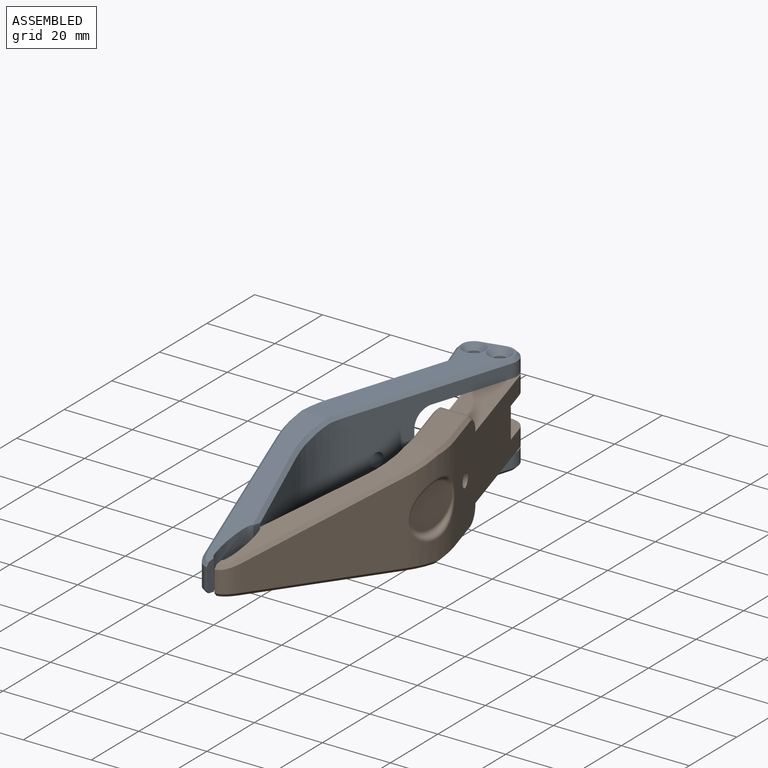
[diagram: assembled view]
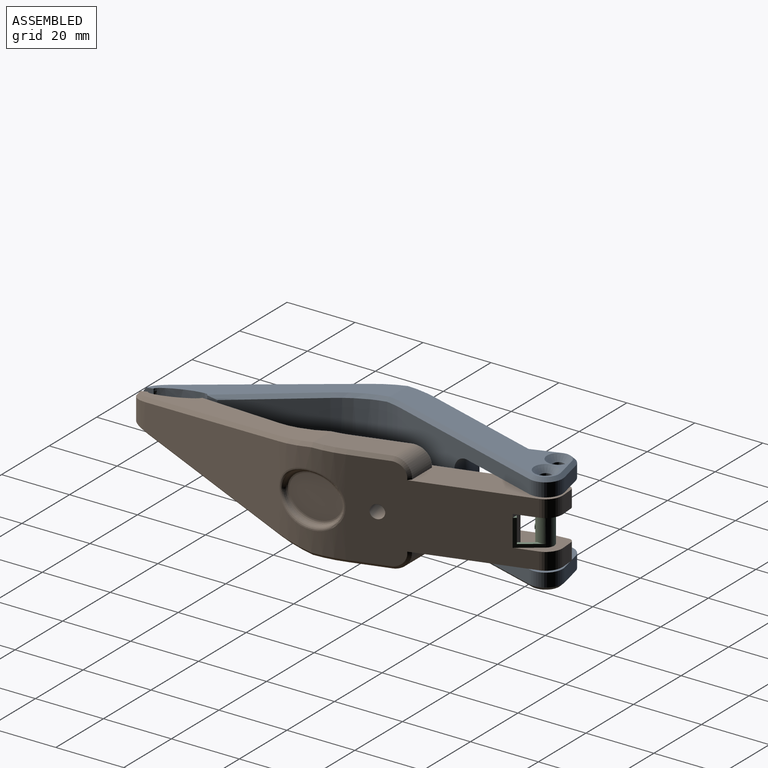
[diagram: assembled view, second angle]
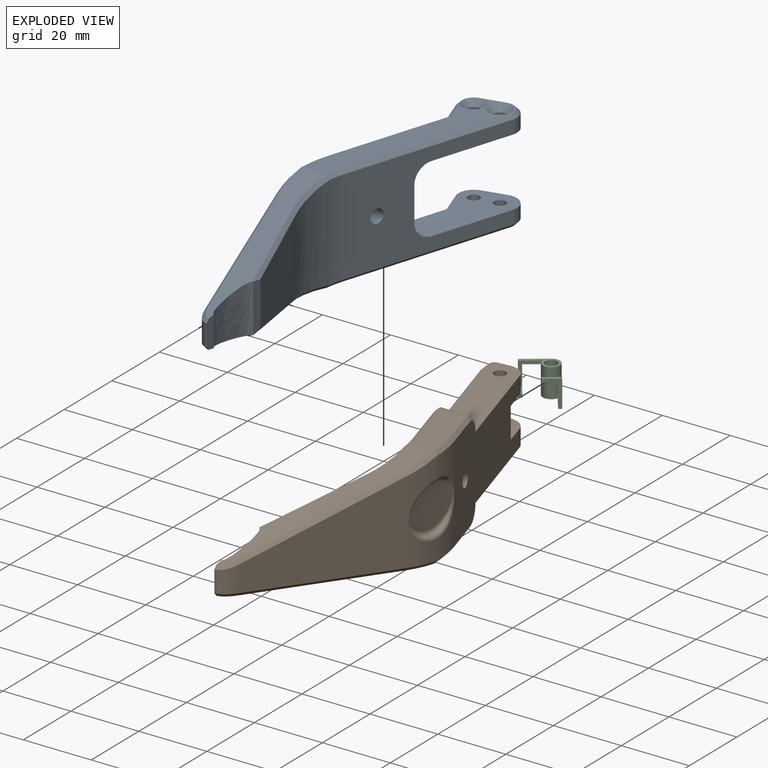
[diagram: exploded view]
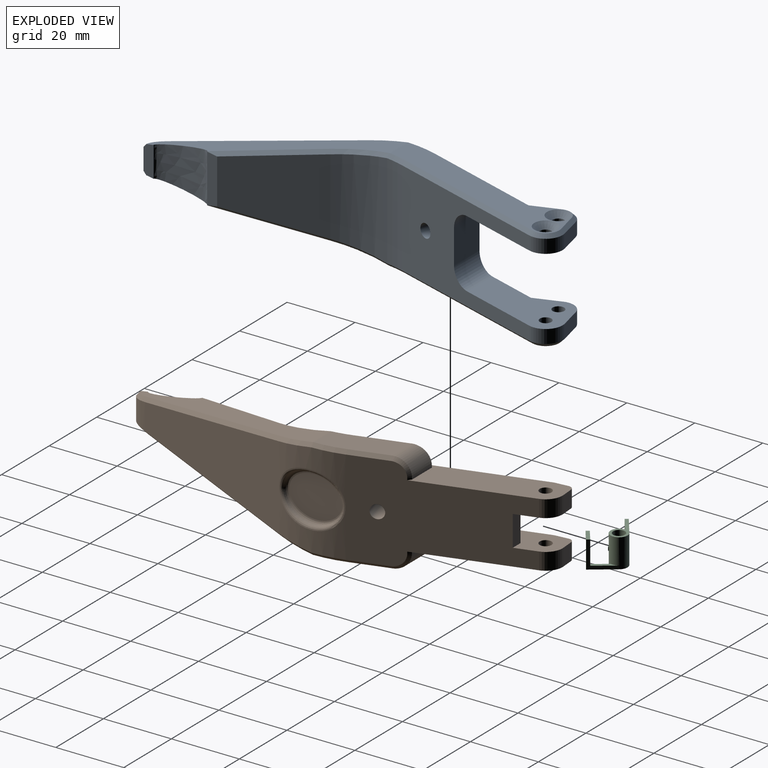
[diagram: exploded view, second angle]
ASSEMBLY  parts=3 mates=2
PART A: 85 faces, bbox 42.8x125.7x30.9 mm
  f0: plane 59x23.13mm, normal (0,0,1), area 477mm2, adj f18,f44,f45,f46,f47,f48,f49,f51
  f1: cylinder r=1.7mm len=3.4mm, axis (0,0,-1), area 26.7mm2, adj f16,f57
  f2: cylinder r=1.7mm len=3.4mm, axis (0,0,1), area 26.7mm2, adj f16,f50
  f3: cylinder r=5mm len=6.42mm, axis (0,0,-1), area 42.1mm2, adj f11,f16,f43,f65
  f4: plane 35.88x28.62mm, normal (0.96,0.28,0), area 620.2mm2, adj f15,f16,f17,f20,f32,f33,f36,f41
  f5: revolved ~36.99x36.99mm, area 3012.1mm2, adj f24,f28
  f6: extruded ~16x14.43mm, area 196.1mm2, adj f7,f13,f18,f19,f58,f71
  f7: plane 9.02x3mm, normal (-1,0,0), area 24.8mm2, adj f6,f8,f18,f19,f60,f74
  f8: extruded ~7.77x5.04mm, area 49.7mm2, adj f7,f9,f60,f74
  f9: plane 49.5x24.53mm, normal (0.96,-0.28,0), area 833mm2, adj f8,f20,f62,f76
  f10: cylinder r=5mm len=6.42mm, axis (0,0,-1), area 42.1mm2, adj f11,f17,f34,f77
  f11: plane 49.02x28.62mm, normal (-0.96,-0.28,0), area 815.7mm2, adj f3,f10,f15,f16,f17,f21,f32,f33
  f12: plane 27.13x22.49mm, normal (-0.95,0.32,0), area 512.4mm2, adj f13,f21,f58,f71
  f13: plane 14.23x3mm, normal (-1,0,0), area 41.3mm2, adj f6,f12,f58,f71
  f14: plane 59x23.13mm, normal (0,0,-1), area 460.4mm2, adj f19,f38,f40,f73,f75,f77,f79,f80
  f15: plane 10.43x10mm, normal (0,1,0), area 104.3mm2, adj f4,f11,f32,f33
  f16: plane 30x17.59mm, normal (0,0,-1), area 337.4mm2, adj f1,f2,f3,f4,f11,f33,f41,f42
  f17: plane 30x17.59mm, normal (0,0,1), area 337.4mm2, adj f4,f10,f11,f32,f34,f35,f36,f37
  f18: plane 64.35x19.43mm, normal (0,-0.17,0.99), area 371.6mm2, adj f0,f6,f7,f58,f59,f60,f61,f62
  f19: plane 64.35x19.43mm, normal (0,-0.17,-0.99), area 371.6mm2, adj f6,f7,f14,f71,f72,f73,f74,f76
  f20: cylinder r=35mm len=28mm, axis (0,0,1), area 314.9mm2, adj f4,f9,f26,f27,f28,f29,f30,f31
  f21: cylinder r=35mm len=28mm, axis (0,0,-1), area 554.5mm2, adj f11,f12,f59,f61,f72,f73
  f22: revolved ~4.34x0.76mm, area 0mm2, adj f24,f27
  f23: plane 16.42x12.01mm, normal (1,-0.06,0), area 153.2mm2, adj f24,f25
  f24: bspline ~16.95x14.01mm, area 56.7mm2, adj f5,f22,f23,f25,f26,f29,f30
  f25: bspline ~10.17x3.47mm, area 5mm2, adj f23,f24,f31
  f26: bspline ~15.15x7.13mm, area 27.1mm2, adj f20,f24,f27,f28
  f27: bspline ~6.63x1.97mm, area 7.4mm2, adj f20,f22,f26,f29
  f28: bspline ~6.16x2.19mm, area 7.4mm2, adj f5,f20,f26,f30
  f29: bspline ~9.63x4.92mm, area 10.4mm2, adj f20,f24,f27,f31
  f30: bspline ~8.97x4mm, area 10.4mm2, adj f20,f24,f28,f31
  f31: bspline ~11.23x3.23mm, area 8.2mm2, adj f20,f25,f29,f30
  f32: cylinder r=5mm len=11.9mm, axis (1,0,0), area 81.9mm2, adj f4,f11,f15,f17
  f33: cylinder r=5mm len=11.9mm, axis (-1,0,0), area 81.9mm2, adj f4,f11,f15,f16
  f34: plane 6.77x4mm, normal (0.24,0.97,0), area 27.9mm2, adj f10,f17,f35,f79
  f35: cylinder r=4.5mm len=5.92mm, axis (0,0,-1), area 30.2mm2, adj f17,f34,f36,f81
  f36: plane 7.67x4mm, normal (0.94,-0.35,0), area 32.7mm2, adj f4,f17,f35,f83
  f37: cylinder r=1.7mm len=3.4mm, axis (0,0,-1), area 35.7mm2, adj f17,f38
  f38: cone r=1.7mm half-angle=45deg, axis (0,0,-1), area 37.3mm2, adj f14,f37
  f39: cylinder r=1.7mm len=3.4mm, axis (0,0,-1), area 35.7mm2, adj f17,f40
  f40: cone r=1.7mm half-angle=45deg, axis (0,0,-1), area 37.3mm2, adj f14,f39
  f41: plane 7.67x4mm, normal (0.94,-0.35,0), area 32.7mm2, adj f4,f16,f42,f70
  f42: cylinder r=4.5mm len=5.92mm, axis (0,0,1), area 30.2mm2, adj f16,f41,f43,f69
  f43: plane 6.77x4mm, normal (0.24,0.97,0), area 27.9mm2, adj f3,f16,f42,f67
  f44: plane 3.23x2.5mm, normal (-1,0,0), area 8.1mm2, adj f0,f45,f49,f50
  f45: plane 2.8x2.5mm, normal (-0.5,-0.87,0), area 8.1mm2, adj f0,f44,f46,f50
  f46: plane 2.8x2.5mm, normal (0.5,-0.87,0), area 8.1mm2, adj f0,f45,f47,f50
  f47: plane 3.23x2.5mm, normal (1,0,0), area 8.1mm2, adj f0,f46,f48,f50
  f48: plane 2.8x2.5mm, normal (0.5,0.87,0), area 8.1mm2, adj f0,f47,f49,f50
  f49: plane 2.8x2.5mm, normal (-0.5,0.87,0), area 8.1mm2, adj f0,f44,f48,f50
  f50: plane 6.47x5.6mm, normal (0,0,1), area 18.1mm2, adj f2,f44,f45,f46,f47,f48,f49
  f51: plane 3.23x2.5mm, normal (-1,0,0), area 8.1mm2, adj f0,f52,f56,f57
  f52: plane 2.8x2.5mm, normal (-0.5,-0.87,0), area 8.1mm2, adj f0,f51,f53,f57
  f53: plane 2.8x2.5mm, normal (0.5,-0.87,0), area 8.1mm2, adj f0,f52,f54,f57
  f54: plane 3.23x2.5mm, normal (1,0,0), area 8.1mm2, adj f0,f53,f55,f57
  f55: plane 2.8x2.5mm, normal (0.5,0.87,0), area 8.1mm2, adj f0,f54,f56,f57
  f56: plane 2.8x2.5mm, normal (-0.5,0.87,0), area 8.1mm2, adj f0,f51,f55,f57
  f57: plane 6.47x5.6mm, normal (0,0,1), area 18.1mm2, adj f1,f51,f52,f53,f54,f55,f56
  f58: plane 30.15x10.06mm, normal (-0.69,0.11,0.72), area 44.2mm2, adj f6,f12,f13,f18,f59
  f59: bspline ~17.31x3.91mm, area 23.5mm2, adj f18,f21,f58,f61
  f60: bspline ~5.15x4.2mm, area 8.6mm2, adj f7,f8,f18,f62
  f61: cone r=36mm half-angle=45deg, axis (0,0,1), area 7.8mm2, adj f0,f18,f21,f59,f63
  f62: plane 49.62x15.48mm, normal (0.66,-0.31,0.68), area 72.2mm2, adj f9,f18,f60,f64
  f63: plane 48.69x15.25mm, normal (-0.68,-0.2,0.71), area 71.4mm2, adj f0,f11,f61,f65
  f64: bspline ~11.19x2.83mm, area 15mm2, adj f18,f20,f62,f66
  f65: cone r=4mm half-angle=45deg, axis (0,0,-1), area 13.4mm2, adj f0,f3,f63,f67
  f66: cone r=34mm half-angle=45deg, axis (0,0,-1), area 13.1mm2, adj f0,f20,f64,f68
  f67: plane 7.02x2.67mm, normal (0.17,0.69,0.71), area 9.9mm2, adj f0,f43,f65,f69
  f68: plane 35.58x11.46mm, normal (0.68,0.2,0.71), area 52.2mm2, adj f0,f4,f66,f70
  f69: cone r=4.5mm half-angle=45deg, axis (0,0,-1), area 9.5mm2, adj f0,f42,f67,f70
  f70: plane 8.02x3.87mm, normal (0.66,-0.24,0.71), area 11.8mm2, adj f0,f41,f68,f69
  f71: plane 30.15x10.06mm, normal (-0.69,0.11,-0.72), area 44.2mm2, adj f6,f12,f13,f19,f72
  f72: bspline ~17.31x3.91mm, area 23.5mm2, adj f19,f21,f71,f73
  f73: cone r=36mm half-angle=45deg, axis (0,0,-1), area 7.8mm2, adj f14,f19,f21,f72,f75
  f74: bspline ~5.2x4.72mm, area 8.6mm2, adj f7,f8,f19,f76
  f75: plane 48.69x15.25mm, normal (-0.68,-0.2,-0.71), area 71.4mm2, adj f11,f14,f73,f77
  f76: plane 49.62x15.48mm, normal (0.66,-0.31,-0.68), area 72.2mm2, adj f9,f19,f74,f78
  f77: cone r=5mm half-angle=45deg, axis (0,0,1), area 13.4mm2, adj f10,f14,f75,f79
  f78: bspline ~11.19x2.83mm, area 15mm2, adj f19,f20,f76,f80
  f79: plane 7.02x2.67mm, normal (0.17,0.69,-0.71), area 9.9mm2, adj f14,f34,f77,f81
  f80: cone r=34mm half-angle=45deg, axis (0,0,1), area 13.1mm2, adj f14,f20,f78,f82
  f81: cone r=3.5mm half-angle=45deg, axis (0,0,1), area 9.5mm2, adj f14,f35,f79,f83
  f82: plane 35.58x11.46mm, normal (0.68,0.2,-0.71), area 52.2mm2, adj f4,f14,f80,f83
  f83: plane 8.02x3.87mm, normal (0.66,-0.24,-0.71), area 11.8mm2, adj f14,f36,f81,f82
  f84: cylinder r=2mm len=10.72mm, axis (0.96,0.28,0), area 125.7mm2, adj f4,f11
PART B: 75 faces, bbox 42.7x125.2x30.4 mm
  f0: cylinder r=5mm len=5.18mm, axis (0,0,-1), area 34mm2, adj f8,f18,f21,f73
  f1: cylinder r=5mm len=5mm, axis (0,0,-1), area 4.7mm2, adj f11,f16,f19,f68
  f2: plane 9x3.26mm, normal (0,1,0), area 29.3mm2, adj f8,f18,f19,f67
  f3: revolved ~36.99x36.99mm, area 3012.1mm2, adj f32,f36
  f4: extruded ~16x14.43mm, area 196.1mm2, adj f5,f13,f23,f24,f40,f53
  f5: plane 9.02x3mm, normal (-1,0,0), area 24.8mm2, adj f4,f6,f23,f24,f46,f59
  f6: extruded ~7.77x5.04mm, area 49.7mm2, adj f5,f7,f46,f59
  f7: plane 49.5x24.53mm, normal (0.96,-0.28,0), area 833mm2, adj f6,f26,f47,f60
  f8: plane 47.13x28.02mm, normal (0.96,0.28,0), area 994.2mm2, adj f0,f2,f10,f16,f18,f19,f21,f26
  f9: cylinder r=5mm len=5mm, axis (0,0,-1), area 4.7mm2, adj f11,f18,f21,f71
  f10: cylinder r=5mm len=5.18mm, axis (0,0,-1), area 34mm2, adj f8,f16,f19,f70
  f11: plane 48.42x28.02mm, normal (-0.96,-0.28,0), area 1034.6mm2, adj f1,f9,f16,f18,f19,f21,f27,f43
  f12: plane 27.13x22.49mm, normal (-0.95,0.32,0), area 512.4mm2, adj f13,f27,f40,f53
  f13: plane 14.23x3mm, normal (-1,0,0), area 41.3mm2, adj f4,f12,f40,f53
  f14: plane 20x12.97mm, normal (0,0,1), area 163.8mm2, adj f23,f29,f42,f43,f49,f50
  f15: plane 20x12.97mm, normal (0,0,-1), area 163.8mm2, adj f24,f28,f55,f56,f62,f63
  f16: plane 36.28x19.61mm, normal (0,0,1), area 348.7mm2, adj f1,f8,f10,f11,f17,f25,f45,f52
  f17: plane 8.34x0.5mm, normal (0,1,0), area 4.2mm2, adj f16,f29,f45,f52
  f18: plane 14.8x12.02mm, normal (0,0,1), area 111.2mm2, adj f0,f2,f8,f9,f11,f20,f66,f67
  f19: plane 14.8x12.02mm, normal (0,0,-1), area 111.2mm2, adj f1,f2,f8,f10,f11,f25,f66,f67
  f20: cylinder r=1.75mm len=5mm, axis (0,0,-1), area 55mm2, adj f18,f21
  f21: plane 36.28x19.61mm, normal (0,0,-1), area 348.7mm2, adj f0,f8,f9,f11,f20,f22,f58,f65
  f22: plane 8.34x0.5mm, normal (0,1,0), area 4.2mm2, adj f21,f28,f58,f65
  f23: plane 64.35x19.43mm, normal (0,-0.17,0.99), area 371.6mm2, adj f4,f5,f14,f40,f41,f42,f46,f47
  f24: plane 64.35x19.43mm, normal (0,-0.17,-0.99), area 371.6mm2, adj f4,f5,f15,f53,f54,f55,f59,f60
  f25: cylinder r=1.75mm len=5mm, axis (0,0,-1), area 55mm2, adj f16,f19
  f26: cylinder r=35mm len=28mm, axis (0,0,1), area 314.9mm2, adj f7,f8,f34,f35,f36,f37,f38,f39
  f27: cylinder r=35mm len=28mm, axis (0,0,-1), area 554.5mm2, adj f11,f12,f41,f42,f54,f55
  f28: cylinder r=5mm len=9.52mm, axis (1,0,0), area 65.5mm2, adj f15,f22,f57,f64
  f29: cylinder r=5mm len=9.52mm, axis (1,0,0), area 65.5mm2, adj f14,f17,f44,f51
  f30: revolved ~4.34x0.76mm, area 0mm2, adj f32,f35
  f31: plane 16.42x12.01mm, normal (1,-0.06,0), area 153.2mm2, adj f32,f33
  f32: bspline ~16.95x14.01mm, area 56.7mm2, adj f3,f30,f31,f33,f34,f37,f38
  f33: bspline ~10.17x3.47mm, area 5mm2, adj f31,f32,f39
  f34: bspline ~15.15x7.13mm, area 27.1mm2, adj f26,f32,f35,f36
  f35: bspline ~6.63x1.97mm, area 7.4mm2, adj f26,f30,f34,f37
  f36: bspline ~6.16x2.19mm, area 7.4mm2, adj f3,f26,f34,f38
  f37: bspline ~9.63x4.92mm, area 10.4mm2, adj f26,f32,f35,f39
  f38: bspline ~9.63x4.92mm, area 10.4mm2, adj f26,f32,f36,f39
  f39: bspline ~11.23x3.23mm, area 8.2mm2, adj f26,f33,f37,f38
  f40: plane 30.15x10.06mm, normal (-0.69,0.11,0.72), area 44.2mm2, adj f4,f12,f13,f23,f41
  f41: bspline ~16.31x3.74mm, area 23.5mm2, adj f23,f27,f40,f42
  f42: cone r=36mm half-angle=45deg, axis (0,0,1), area 7.8mm2, adj f14,f23,f27,f41,f43
  f43: plane 14.82x5.25mm, normal (-0.68,-0.2,0.71), area 21.4mm2, adj f11,f14,f42,f44
  f44: bspline ~5.29x5.01mm, area 11mm2, adj f11,f29,f43,f45
  f45: plane 1.28x0.96mm, normal (-0.8,0.6,0), area 0.8mm2, adj f11,f16,f17,f44
  f46: bspline ~5.15x4.2mm, area 8.6mm2, adj f5,f6,f23,f47
  f47: plane 49.62x15.48mm, normal (0.66,-0.31,0.68), area 72.2mm2, adj f7,f23,f46,f48
  f48: bspline ~11.19x2.83mm, area 15mm2, adj f23,f26,f47,f49
  f49: cone r=34mm half-angle=45deg, axis (0,0,-1), area 13.1mm2, adj f14,f26,f48,f50
  f50: plane 11.27x4.2mm, normal (0.68,0.2,0.71), area 16.2mm2, adj f8,f14,f49,f51
  f51: bspline ~5.01x5.01mm, area 9.2mm2, adj f8,f29,f50,f52
  f52: plane 0.96x0.72mm, normal (0.6,0.8,0), area 0.6mm2, adj f8,f16,f17,f51
  f53: plane 30.15x10.06mm, normal (-0.69,0.11,-0.72), area 44.2mm2, adj f4,f12,f13,f24,f54
  f54: bspline ~17.31x3.91mm, area 23.5mm2, adj f24,f27,f53,f55
  f55: cone r=36mm half-angle=45deg, axis (0,0,-1), area 7.8mm2, adj f15,f24,f27,f54,f56
  f56: plane 14.82x5.25mm, normal (-0.68,-0.2,-0.71), area 21.4mm2, adj f11,f15,f55,f57
  f57: bspline ~5.29x5.01mm, area 11mm2, adj f11,f28,f56,f58
  f58: plane 1.28x0.96mm, normal (-0.8,0.6,0), area 0.8mm2, adj f11,f21,f22,f57
  f59: bspline ~5.2x4.72mm, area 8.6mm2, adj f5,f6,f24,f60
  f60: plane 49.62x15.48mm, normal (0.66,-0.31,-0.68), area 72.2mm2, adj f7,f24,f59,f61
  f61: bspline ~11.19x2.83mm, area 15mm2, adj f24,f26,f60,f62
  f62: cone r=34mm half-angle=45deg, axis (0,0,1), area 13.1mm2, adj f15,f26,f61,f63
  f63: plane 11.27x4.2mm, normal (0.68,0.2,-0.71), area 16.2mm2, adj f8,f15,f62,f64
  f64: bspline ~5.01x5.01mm, area 9.2mm2, adj f8,f28,f63,f65
  f65: plane 0.96x0.72mm, normal (0.6,0.8,0), area 0.6mm2, adj f8,f21,f22,f64
  f66: plane 9x4.62mm, normal (-0.28,0.96,0), area 43.4mm2, adj f11,f18,f19,f67
  f67: plane 9x3.43mm, normal (-0.95,0.31,0), area 32.5mm2, adj f2,f18,f19,f66
  f68: plane 5x3.55mm, normal (-1,-0.1,0), area 17.9mm2, adj f1,f16,f19,f69
  f69: cylinder r=1.5mm len=5mm, axis (0,0,1), area 11.9mm2, adj f16,f19,f68,f70
  f70: plane 5x3.56mm, normal (-0.08,1,0), area 17.9mm2, adj f10,f16,f19,f69
  f71: plane 5x3.55mm, normal (-1,-0.1,0), area 17.9mm2, adj f9,f18,f21,f72
  f72: cylinder r=1.5mm len=5mm, axis (0,0,-1), area 11.9mm2, adj f18,f21,f71,f73
  f73: plane 5x3.56mm, normal (-0.08,1,0), area 17.9mm2, adj f0,f18,f21,f72
  f74: cylinder r=2mm len=10.72mm, axis (0.96,0.28,0), area 125.7mm2, adj f8,f11
PART C: 20 faces, bbox 10.5x8.5x10.5 mm
  f0: plane 7x1mm, normal (0,-1,0), area 5.6mm2, adj f1,f13,f15,f17
  f1: cylinder r=2.5mm len=8.5mm, axis (0,1,0), area 128.9mm2, adj f0,f2,f3,f5,f6,f7,f13,f15
  f2: plane 7x6mm, normal (0,0,1), area 12mm2, adj f1,f3,f5,f8,f9,f11
  f3: plane 7x1mm, normal (0,1,0), area 5.6mm2, adj f1,f2,f7,f9
  f4: cylinder r=1.75mm len=8.5mm, axis (0,1,0), area 93.5mm2, adj f5,f6
  f5: plane 10.5x5mm, normal (0,-1,0), area 16.6mm2, adj f1,f2,f4,f7,f8
  f6: plane 10.5x5mm, normal (0,1,0), area 16.6mm2, adj f1,f4,f13,f14,f15
  f7: plane 8x8mm, normal (0,0,-1), area 15mm2, adj f1,f3,f5,f8,f9,f10
  f8: plane 8x5mm, normal (1,0,0), area 12mm2, adj f2,f5,f7,f10,f11,f12
  f9: plane 7x5mm, normal (-1,0,0), area 11mm2, adj f2,f3,f7,f10,f11,f12
  f10: plane 5x1mm, normal (0,1,0), area 5mm2, adj f7,f8,f9,f12
  f11: plane 4x1mm, normal (0,-1,0), area 4mm2, adj f2,f8,f9,f12
  f12: plane 1x1mm, normal (0,0,1), area 1mm2, adj f8,f9,f10,f11
  f13: plane 8x8mm, normal (-1,0,0), area 15mm2, adj f0,f1,f6,f14,f16,f17
  f14: plane 8x5mm, normal (0,0,1), area 12mm2, adj f6,f13,f15,f16,f18,f19
  f15: plane 7x6mm, normal (1,0,0), area 12mm2, adj f0,f1,f6,f14,f17,f18
  f16: plane 5x1mm, normal (0,-1,0), area 5mm2, adj f13,f14,f17,f19
  f17: plane 7x5mm, normal (0,0,-1), area 11mm2, adj f0,f13,f15,f16,f18,f19
  f18: plane 4x1mm, normal (0,1,0), area 4mm2, adj f14,f15,f17,f19
  f19: plane 1x1mm, normal (1,0,0), area 1mm2, adj f14,f16,f17,f18
PLACE A rot(axis=(-0.01,-1,0),180deg) t=(5.46,3.97,31.23)mm
PLACE B t=(5.46,3.97,1.23)mm fixed
PLACE C rot(axis=(-0.22,0.69,-0.69),154.7deg) t=(5.46,3.97,11.73)mm
MATE revolute A.f3 <-> B.f0  axis (0,0,-1) through (5.46,3.97,26.23)mm
MATE revolute C.f4 <-> B.f20  axis (0,0,-1) through (5.46,3.97,11.73)mm
